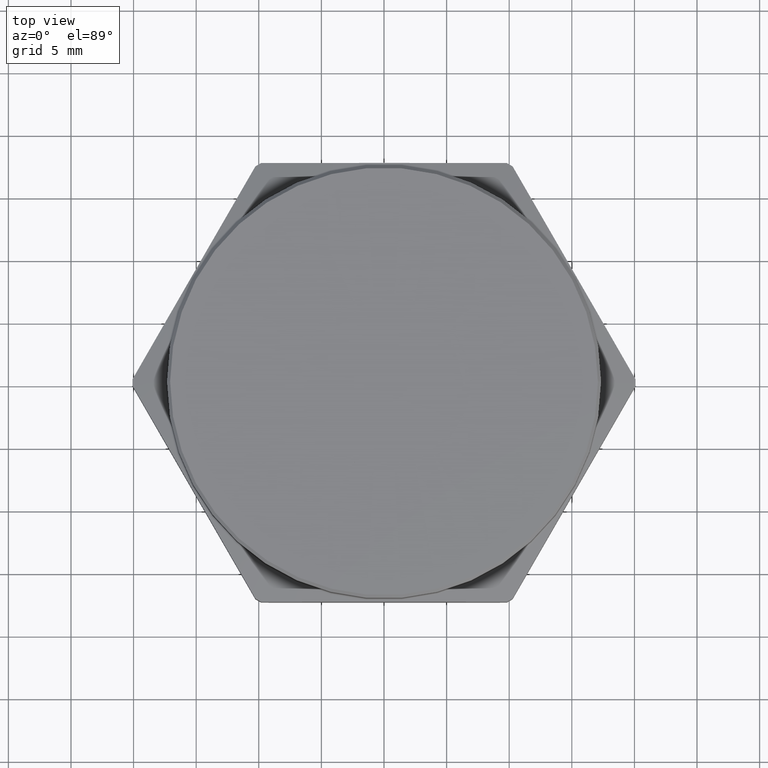
[diagram: clean part render]
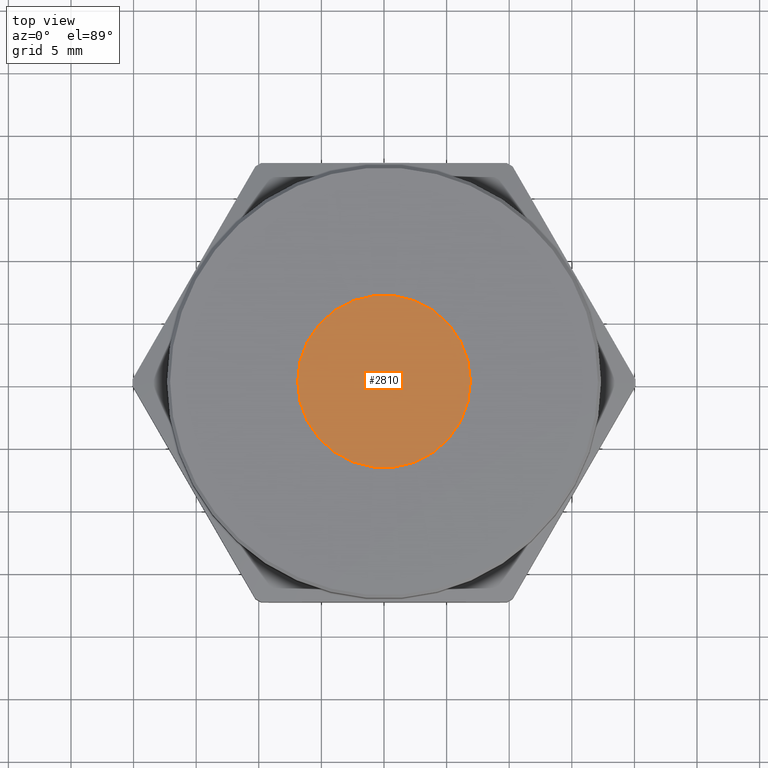
[diagram: same view with one face highlighted and labeled with its STEP entity id]
A machine part, top view. The second image highlights one B-rep face of the part: STEP entity #2810.
In plain terms, the highlighted planar face has unit normal (0, 0, 1).
Its self-contained STEP definition (entity closure, byte-faithful):
#707 = CIRCLE ( 'NONE', #1555, 0.2715000000000000200 ) ;
#711 = CIRCLE ( 'NONE', #1557, 0.2715000000000000200 ) ;
#748 = FACE_OUTER_BOUND ( 'NONE', #2445, .T. ) ;
#1472 = PLANE ( 'NONE',  #1581 ) ;
#1474 = CARTESIAN_POINT ( 'NONE',  ( 0.0000000000000000000, 0.0000000000000000000, 0.3599999999999999900 ) ) ;
#1479 = DIRECTION ( 'NONE',  ( 0.0000000000000000000, 0.0000000000000000000, 1.000000000000000000 ) ) ;
#1480 = DIRECTION ( 'NONE',  ( 1.000000000000000000, 0.0000000000000000000, -0.0000000000000000000 ) ) ;
#1555 = AXIS2_PLACEMENT_3D ( 'NONE', #1829, #1830, #1831 ) ;
#1557 = AXIS2_PLACEMENT_3D ( 'NONE', #1835, #1836, #1837 ) ;
#1581 = AXIS2_PLACEMENT_3D ( 'NONE', #1474, #1479, #1480 ) ;
#1829 = CARTESIAN_POINT ( 'NONE',  ( 0.0000000000000000000, 0.0000000000000000000, 0.3599999999999999900 ) ) ;
#1830 = DIRECTION ( 'NONE',  ( 0.0000000000000000000, 0.0000000000000000000, 1.000000000000000000 ) ) ;
#1831 = DIRECTION ( 'NONE',  ( 1.000000000000000000, 0.0000000000000000000, 0.0000000000000000000 ) ) ;
#1835 = CARTESIAN_POINT ( 'NONE',  ( 0.0000000000000000000, 0.0000000000000000000, 0.3599999999999999900 ) ) ;
#1836 = DIRECTION ( 'NONE',  ( 0.0000000000000000000, 0.0000000000000000000, 1.000000000000000000 ) ) ;
#1837 = DIRECTION ( 'NONE',  ( 1.000000000000000000, 0.0000000000000000000, 0.0000000000000000000 ) ) ;
#1892 = CARTESIAN_POINT ( 'NONE',  ( 0.2715000000000000200, 0.0000000000000000000, 0.3599999999999999900 ) ) ;
#1898 = CARTESIAN_POINT ( 'NONE',  ( -0.2715000000000000200, 3.324916059685064000E-017, 0.3599999999999999900 ) ) ;
#2445 = EDGE_LOOP ( 'NONE', ( #2774, #2777 ) ) ;
#2638 = EDGE_CURVE ( 'NONE', #2732, #2731, #707, .T. ) ;
#2641 = EDGE_CURVE ( 'NONE', #2731, #2732, #711, .T. ) ;
#2731 = VERTEX_POINT ( 'NONE', #1898 ) ;
#2732 = VERTEX_POINT ( 'NONE', #1892 ) ;
#2774 = ORIENTED_EDGE ( 'NONE', *, *, #2638, .T. ) ;
#2777 = ORIENTED_EDGE ( 'NONE', *, *, #2641, .T. ) ;
#2810 = ADVANCED_FACE ( 'NONE', ( #748 ), #1472, .T. ) ;